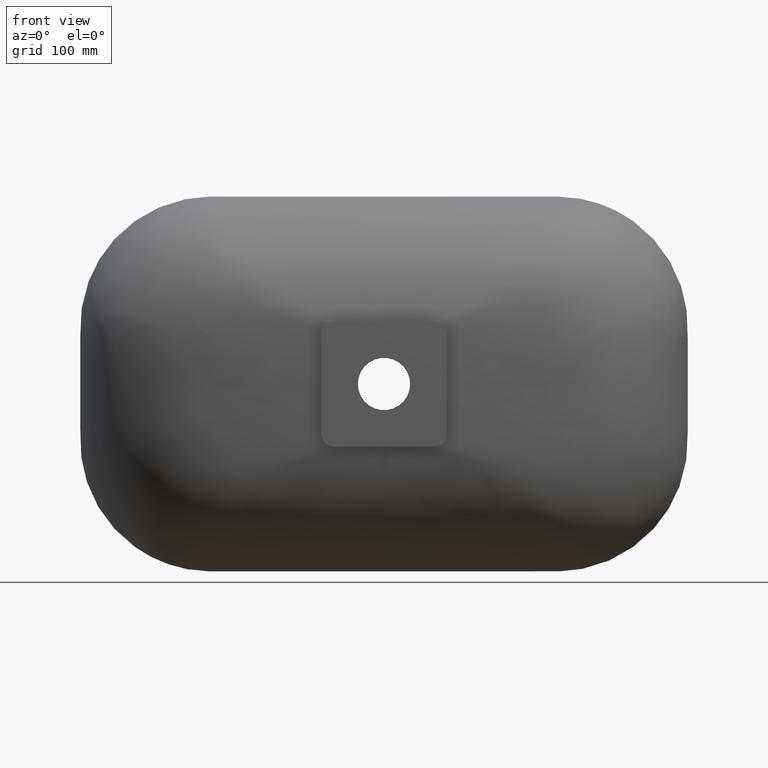
[diagram: clean part render]
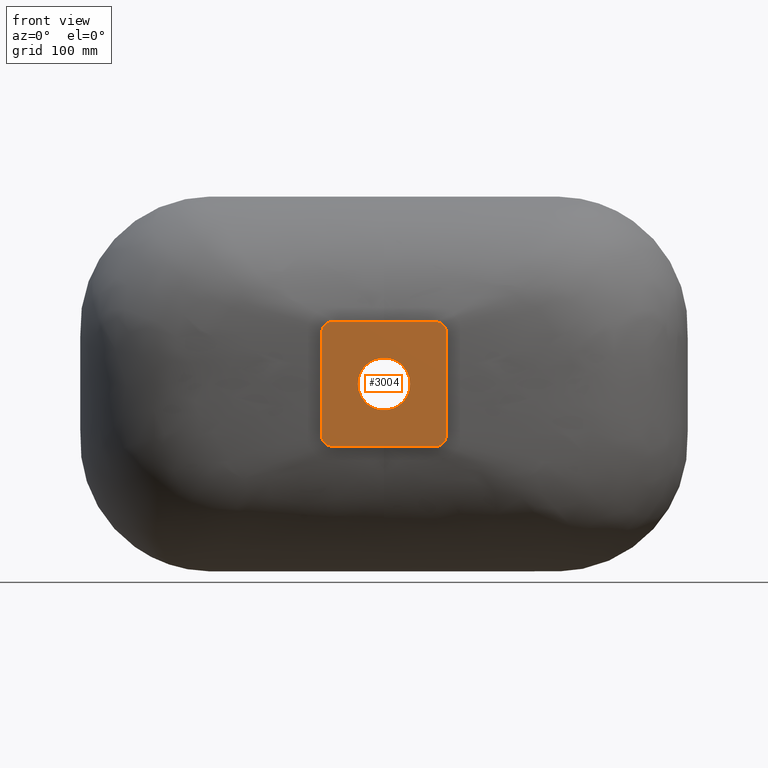
[diagram: same view with one face highlighted and labeled with its STEP entity id]
A machine part, front view. The second image highlights one B-rep face of the part: STEP entity #3004.
In plain terms, the highlighted planar face has unit normal (0, -1, 0).
Its self-contained STEP definition (entity closure, byte-faithful):
#23 = LINE ( 'NONE', #2421, #1942 ) ;
#56 = LINE ( 'NONE', #2453, #4596 ) ;
#181 = EDGE_CURVE ( 'NONE', #6438, #847, #1746, .T. ) ;
#190 = VECTOR ( 'NONE', #3013, 1000.000000000000000 ) ;
#256 = VERTEX_POINT ( 'NONE', #5847 ) ;
#270 = DIRECTION ( 'NONE',  ( 2.867289048822921029E-14, -1.000000000000000000, 9.100188726435675078E-16 ) ) ;
#363 = CARTESIAN_POINT ( 'NONE',  ( -44.99999999999980815, -141.0000000000011937, 54.99999999999974420 ) ) ;
#430 = DIRECTION ( 'NONE',  ( -1.000000000000000000, -2.775557561562894822E-14, 0.0000000000000000000 ) ) ;
#517 = DIRECTION ( 'NONE',  ( 2.867289048822921029E-14, -1.000000000000000000, 9.100188726435675078E-16 ) ) ;
#518 = EDGE_CURVE ( 'NONE', #5877, #7608, #4708, .T. ) ;
#609 = CARTESIAN_POINT ( 'NONE',  ( -54.99999999999981526, -141.0000000000015348, -45.00000000000024869 ) ) ;
#847 = VERTEX_POINT ( 'NONE', #5838 ) ;
#967 = CARTESIAN_POINT ( 'NONE',  ( 3.899513106399173408E-12, -140.9999999999999432, -1.179795435211136692E-13 ) ) ;
#984 = ORIENTED_EDGE ( 'NONE', *, *, #6257, .T. ) ;
#1030 = DIRECTION ( 'NONE',  ( 2.867289048822921029E-14, -1.000000000000000000, 9.100188726435675078E-16 ) ) ;
#1184 = AXIS2_PLACEMENT_3D ( 'NONE', #6432, #1030, #3436 ) ;
#1215 = DIRECTION ( 'NONE',  ( -1.000000000000000000, -2.868076146948322746E-14, -1.541976423090496126E-16 ) ) ;
#1452 = AXIS2_PLACEMENT_3D ( 'NONE', #5674, #270, #2670 ) ;
#1523 = DIRECTION ( 'NONE',  ( -1.000000000000000000, -2.775557561562896715E-14, 0.0000000000000000000 ) ) ;
#1579 = AXIS2_PLACEMENT_3D ( 'NONE', #967, #3374, #5782 ) ;
#1627 = VERTEX_POINT ( 'NONE', #5911 ) ;
#1648 = CARTESIAN_POINT ( 'NONE',  ( 55.00000000000015632, -140.9999999999983231, 44.99999999999976552 ) ) ;
#1741 = CARTESIAN_POINT ( 'NONE',  ( 45.00000000000016342, -140.9999999999986926, -45.00000000000023448 ) ) ;
#1746 = CIRCLE ( 'NONE', #1184, 9.999999999999994671 ) ;
#1867 = CARTESIAN_POINT ( 'NONE',  ( 45.00000000000016342, -140.9999999999986926, -55.00000000000020606 ) ) ;
#1942 = VECTOR ( 'NONE', #4829, 1000.000000000000000 ) ;
#2285 = CARTESIAN_POINT ( 'NONE',  ( 45.00000000000014921, -140.9999999999986073, 54.99999999999973710 ) ) ;
#2330 = FACE_OUTER_BOUND ( 'NONE', #4392, .T. ) ;
#2421 = CARTESIAN_POINT ( 'NONE',  ( 45.00000000000016342, -140.9999999999986926, -55.00000000000020606 ) ) ;
#2453 = CARTESIAN_POINT ( 'NONE',  ( 55.00000000000018474, -140.9999999999984084, -45.00000000000023448 ) ) ;
#2670 = DIRECTION ( 'NONE',  ( 1.000000000000000000, 2.896233977283470266E-14, 0.0000000000000000000 ) ) ;
#2918 = DIRECTION ( 'NONE',  ( 1.000000000000000000, 2.775557561562892929E-14, 0.0000000000000000000 ) ) ;
#3004 = ADVANCED_FACE ( 'NONE', ( #2330, #4737 ), #7146, .T. ) ;
#3013 = DIRECTION ( 'NONE',  ( 1.541976423090495387E-16, -9.251858538542971828E-16, -1.000000000000000000 ) ) ;
#3368 = ORIENTED_EDGE ( 'NONE', *, *, #4233, .T. ) ;
#3374 = DIRECTION ( 'NONE',  ( 2.867289048822921029E-14, -1.000000000000000000, 9.100188726435675078E-16 ) ) ;
#3404 = ORIENTED_EDGE ( 'NONE', *, *, #5398, .T. ) ;
#3422 = CARTESIAN_POINT ( 'NONE',  ( -44.99999999999982236, -141.0000000000012506, -45.00000000000022737 ) ) ;
#3436 = DIRECTION ( 'NONE',  ( 1.000000000000000000, 2.775557561562892929E-14, 0.0000000000000000000 ) ) ;
#3456 = EDGE_CURVE ( 'NONE', #256, #5776, #4837, .T. ) ;
#3590 = AXIS2_PLACEMENT_3D ( 'NONE', #3422, #5834, #430 ) ;
#3606 = ORIENTED_EDGE ( 'NONE', *, *, #518, .T. ) ;
#3643 = ORIENTED_EDGE ( 'NONE', *, *, #3456, .F. ) ;
#4027 = VERTEX_POINT ( 'NONE', #7007 ) ;
#4144 = DIRECTION ( 'NONE',  ( 2.867289048822921029E-14, -1.000000000000000000, 9.100188726435675078E-16 ) ) ;
#4207 = LINE ( 'NONE', #6616, #7241 ) ;
#4233 = EDGE_CURVE ( 'NONE', #6957, #6438, #23, .T. ) ;
#4392 = EDGE_LOOP ( 'NONE', ( #6880, #7669, #3606, #5027, #3404, #984, #4988, #3368 ) ) ;
#4517 = CARTESIAN_POINT ( 'NONE',  ( -44.99999999999982236, -141.0000000000011937, 44.99999999999976552 ) ) ;
#4596 = VECTOR ( 'NONE', #4862, 1000.000000000000000 ) ;
#4643 = CARTESIAN_POINT ( 'NONE',  ( 23.00000000000030198, -140.9999999999992610, -1.165278841920392250E-13 ) ) ;
#4708 = CIRCLE ( 'NONE', #6987, 9.999999999999994671 ) ;
#4737 = FACE_BOUND ( 'NONE', #7192, .T. ) ;
#4829 = DIRECTION ( 'NONE',  ( 1.000000000000000000, 2.868076146948322746E-14, 1.541976423090496126E-16 ) ) ;
#4837 = CIRCLE ( 'NONE', #1452, 22.99999999999640110 ) ;
#4862 = DIRECTION ( 'NONE',  ( -1.541976423090495387E-16, 9.251858538542971828E-16, 1.000000000000000000 ) ) ;
#4944 = ORIENTED_EDGE ( 'NONE', *, *, #5529, .F. ) ;
#4975 = CIRCLE ( 'NONE', #1579, 22.99999999999640110 ) ;
#4988 = ORIENTED_EDGE ( 'NONE', *, *, #5678, .T. ) ;
#5027 = ORIENTED_EDGE ( 'NONE', *, *, #7716, .T. ) ;
#5398 = EDGE_CURVE ( 'NONE', #7016, #1627, #6362, .T. ) ;
#5529 = EDGE_CURVE ( 'NONE', #5776, #256, #4975, .T. ) ;
#5674 = CARTESIAN_POINT ( 'NONE',  ( 3.899513106399173408E-12, -140.9999999999999432, -1.179795435211136692E-13 ) ) ;
#5678 = EDGE_CURVE ( 'NONE', #4027, #6957, #5982, .T. ) ;
#5768 = CARTESIAN_POINT ( 'NONE',  ( -44.99999999999978684, -141.0000000000012506, -55.00000000000022027 ) ) ;
#5776 = VERTEX_POINT ( 'NONE', #4643 ) ;
#5782 = DIRECTION ( 'NONE',  ( 1.000000000000000000, 2.896233977283470266E-14, 0.0000000000000000000 ) ) ;
#5834 = DIRECTION ( 'NONE',  ( 2.867289048822921029E-14, -1.000000000000000000, 9.100188726435675078E-16 ) ) ;
#5838 = CARTESIAN_POINT ( 'NONE',  ( 55.00000000000018474, -140.9999999999984084, -45.00000000000023448 ) ) ;
#5847 = CARTESIAN_POINT ( 'NONE',  ( -22.99999999999250377, -141.0000000000005969, -1.193445718300764925E-13 ) ) ;
#5877 = VERTEX_POINT ( 'NONE', #1648 ) ;
#5911 = CARTESIAN_POINT ( 'NONE',  ( -54.99999999999982947, -141.0000000000014495, 44.99999999999975131 ) ) ;
#5919 = CARTESIAN_POINT ( 'NONE',  ( 45.00000000000016342, -140.9999999999986073, 44.99999999999976552 ) ) ;
#5972 = AXIS2_PLACEMENT_3D ( 'NONE', #1741, #4144, #6551 ) ;
#5982 = CIRCLE ( 'NONE', #3590, 9.999999999999987566 ) ;
#6013 = LINE ( 'NONE', #609, #190 ) ;
#6257 = EDGE_CURVE ( 'NONE', #1627, #4027, #6013, .T. ) ;
#6358 = EDGE_CURVE ( 'NONE', #847, #5877, #56, .T. ) ;
#6362 = CIRCLE ( 'NONE', #7364, 9.999999999999980460 ) ;
#6432 = CARTESIAN_POINT ( 'NONE',  ( 45.00000000000016342, -140.9999999999986926, -45.00000000000023448 ) ) ;
#6438 = VERTEX_POINT ( 'NONE', #1867 ) ;
#6551 = DIRECTION ( 'NONE',  ( 1.000000000000000000, 2.867289048822921029E-14, 0.0000000000000000000 ) ) ;
#6616 = CARTESIAN_POINT ( 'NONE',  ( 45.00000000000014921, -140.9999999999986073, 54.99999999999973710 ) ) ;
#6880 = ORIENTED_EDGE ( 'NONE', *, *, #181, .T. ) ;
#6923 = DIRECTION ( 'NONE',  ( 2.867289048822921029E-14, -1.000000000000000000, 9.100188726435675078E-16 ) ) ;
#6957 = VERTEX_POINT ( 'NONE', #5768 ) ;
#6987 = AXIS2_PLACEMENT_3D ( 'NONE', #5919, #517, #2918 ) ;
#7007 = CARTESIAN_POINT ( 'NONE',  ( -54.99999999999982236, -141.0000000000015348, -45.00000000000024869 ) ) ;
#7016 = VERTEX_POINT ( 'NONE', #363 ) ;
#7146 = PLANE ( 'NONE',  #5972 ) ;
#7192 = EDGE_LOOP ( 'NONE', ( #3643, #4944 ) ) ;
#7241 = VECTOR ( 'NONE', #1215, 1000.000000000000000 ) ;
#7364 = AXIS2_PLACEMENT_3D ( 'NONE', #4517, #6923, #1523 ) ;
#7608 = VERTEX_POINT ( 'NONE', #2285 ) ;
#7669 = ORIENTED_EDGE ( 'NONE', *, *, #6358, .T. ) ;
#7716 = EDGE_CURVE ( 'NONE', #7608, #7016, #4207, .T. ) ;